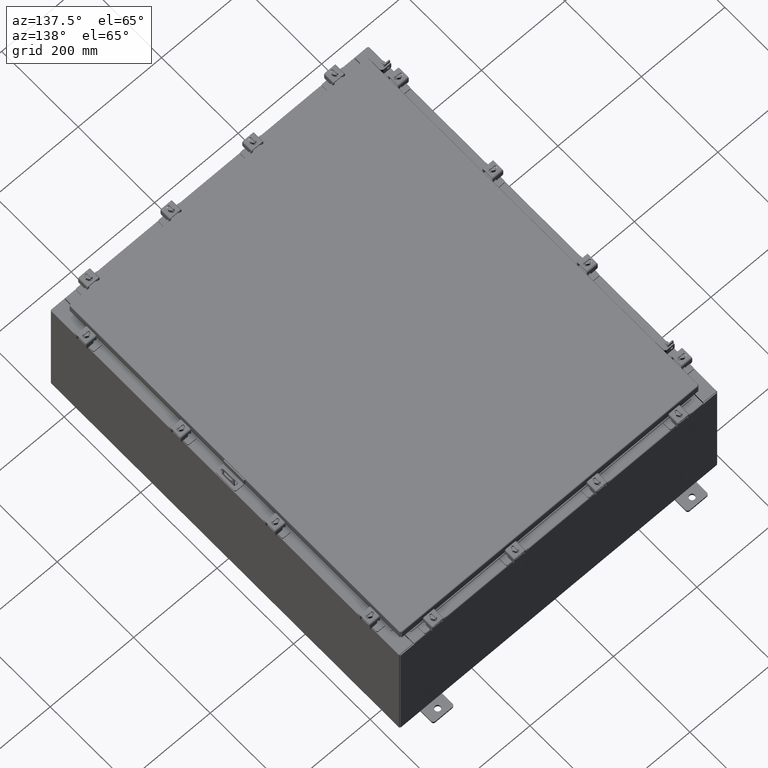
[diagram: clean part render]
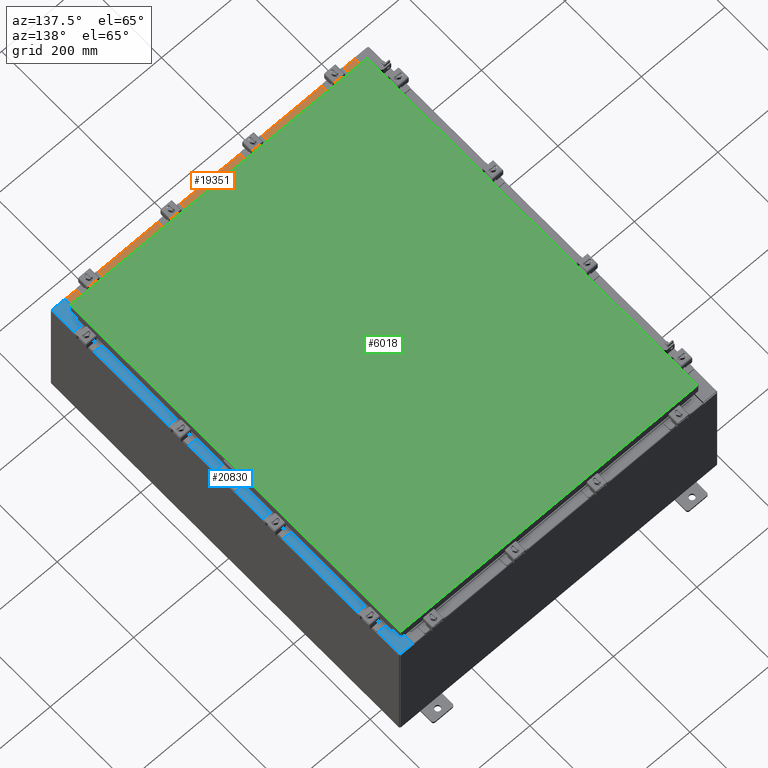
[diagram: same view with three faces highlighted in distinct colors, each labeled with its STEP entity id]
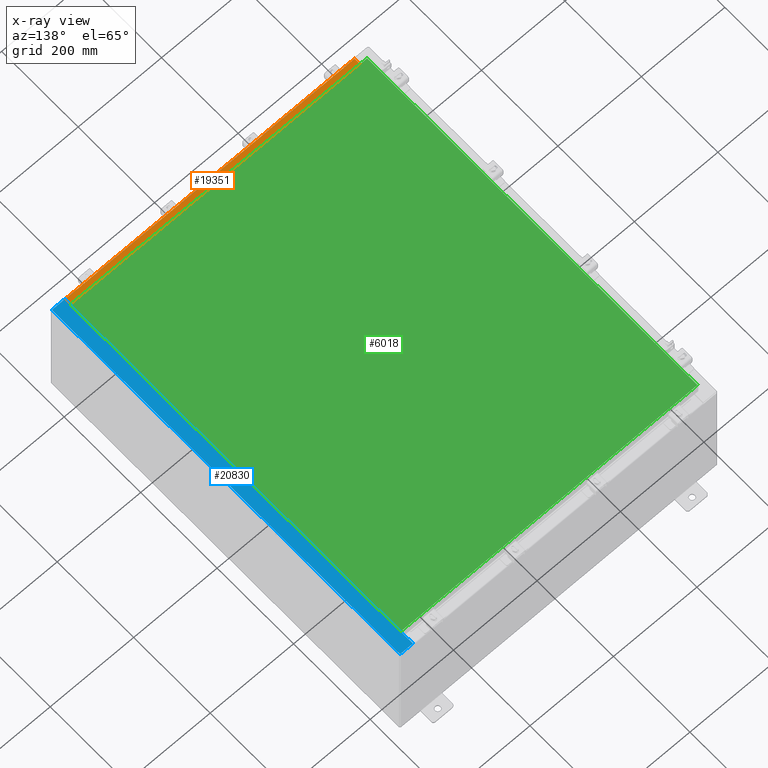
[diagram: x-ray of the same camera — body ghosted, the three highlighted faces saturated]
A machine part, auxiliary view with three faces highlighted in distinct colors.
The next image is the same camera in x-ray (body ghosted, the three faces saturated) — at least one of them is partly hidden behind the body in this view.
Their STEP definitions:

[orange] entity #19351 — the highlighted planar face has unit normal (-0, -0, 1).
#27 = CARTESIAN_POINT ( 'NONE',  ( -13.63719999999999800, -0.07469999999999973900, 5.999999999999999100 ) ) ;
#939 = DIRECTION ( 'NONE',  ( 0.0000000000000000000, -1.000000000000000000, 3.566381192773190000E-015 ) ) ;
#3584 = VERTEX_POINT ( 'NONE', #21790 ) ;
#3654 = VERTEX_POINT ( 'NONE', #15987 ) ;
#3777 = CARTESIAN_POINT ( 'NONE',  ( 13.63720000000000400, -1.287299999999999900, 6.000000000000003600 ) ) ;
#4337 = DIRECTION ( 'NONE',  ( 0.0000000000000000000, 3.566381192773190000E-015, 1.000000000000000000 ) ) ;
#6020 = LINE ( 'NONE', #8593, #14240 ) ;
#6156 = EDGE_LOOP ( 'NONE', ( #22346, #11446, #14502, #13624 ) ) ;
#7895 = LINE ( 'NONE', #27, #21725 ) ;
#8593 = CARTESIAN_POINT ( 'NONE',  ( 13.63720000000000400, -1.300299999999999800, 6.000000000000003600 ) ) ;
#8648 = LINE ( 'NONE', #19190, #12723 ) ;
#8824 = DIRECTION ( 'NONE',  ( -1.000000000000000000, 4.006464660875052000E-017, -1.428858021605520200E-031 ) ) ;
#9294 = LINE ( 'NONE', #3777, #12800 ) ;
#9670 = CARTESIAN_POINT ( 'NONE',  ( -13.63719999999999800, -1.287299999999999200, 6.000000000000003600 ) ) ;
#10375 = DIRECTION ( 'NONE',  ( -0.0000000000000000000, -1.000000000000000000, 3.566381192773190000E-015 ) ) ;
#11446 = ORIENTED_EDGE ( 'NONE', *, *, #15059, .F. ) ;
#11455 = PLANE ( 'NONE',  #14532 ) ;
#12164 = EDGE_CURVE ( 'NONE', #16263, #3584, #6020, .T. ) ;
#12273 = DIRECTION ( 'NONE',  ( -0.0000000000000000000, 1.000000000000000000, -3.566381192773190000E-015 ) ) ;
#12723 = VECTOR ( 'NONE', #8824, 39.37007874015748100 ) ;
#12800 = VECTOR ( 'NONE', #14390, 39.37007874015748100 ) ;
#13624 = ORIENTED_EDGE ( 'NONE', *, *, #17802, .T. ) ;
#14016 = VERTEX_POINT ( 'NONE', #9670 ) ;
#14240 = VECTOR ( 'NONE', #10375, 39.37007874015748100 ) ;
#14390 = DIRECTION ( 'NONE',  ( -1.000000000000000000, 0.0000000000000000000, 0.0000000000000000000 ) ) ;
#14502 = ORIENTED_EDGE ( 'NONE', *, *, #12164, .F. ) ;
#14532 = AXIS2_PLACEMENT_3D ( 'NONE', #20060, #4337, #939 ) ;
#14946 = EDGE_CURVE ( 'NONE', #14016, #3654, #7895, .T. ) ;
#15059 = EDGE_CURVE ( 'NONE', #3584, #14016, #9294, .T. ) ;
#15987 = CARTESIAN_POINT ( 'NONE',  ( -13.63719999999999800, -0.08769999999999972300, 5.999999999999999100 ) ) ;
#16263 = VERTEX_POINT ( 'NONE', #19783 ) ;
#17494 = FACE_OUTER_BOUND ( 'NONE', #6156, .T. ) ;
#17802 = EDGE_CURVE ( 'NONE', #16263, #3654, #8648, .T. ) ;
#19190 = CARTESIAN_POINT ( 'NONE',  ( -3.513669507588266700E-018, -0.08769999999999972300, 5.999999999999999100 ) ) ;
#19351 = ADVANCED_FACE ( 'NONE', ( #17494 ), #11455, .T. ) ;
#19783 = CARTESIAN_POINT ( 'NONE',  ( 13.63720000000000400, -0.08769999999999937600, 5.999999999999999100 ) ) ;
#20060 = CARTESIAN_POINT ( 'NONE',  ( 0.0000000000000000000, 2.139269213755056400E-014, 5.999999999999999100 ) ) ;
#21725 = VECTOR ( 'NONE', #12273, 39.37007874015748100 ) ;
#21790 = CARTESIAN_POINT ( 'NONE',  ( 13.63720000000000400, -1.287299999999999900, 6.000000000000003600 ) ) ;
#22346 = ORIENTED_EDGE ( 'NONE', *, *, #14946, .F. ) ;

[blue] entity #20830 — the highlighted planar face has unit normal (-0, 0, -1).
#1 = VERTEX_POINT ( 'NONE', #7058 ) ;
#203 = CARTESIAN_POINT ( 'NONE',  ( 13.71270000000004300, -16.59375000000000000, 11.92530000000000900 ) ) ;
#336 = DIRECTION ( 'NONE',  ( -0.0000000000000000000, 1.000000000000000000, -0.0000000000000000000 ) ) ;
#603 = EDGE_CURVE ( 'NONE', #5093, #11613, #20485, .T. ) ;
#1014 = VERTEX_POINT ( 'NONE', #21579 ) ;
#1026 = EDGE_CURVE ( 'NONE', #14311, #17795, #8252, .T. ) ;
#1229 = EDGE_LOOP ( 'NONE', ( #2172, #5036, #19442, #19210, #7665, #19835, #5896, #21525, #9112, #18392, #16283, #17995 ) ) ;
#1394 = PLANE ( 'NONE',  #22334 ) ;
#1472 = EDGE_CURVE ( 'NONE', #10079, #16453, #6613, .T. ) ;
#1852 = DIRECTION ( 'NONE',  ( 1.000000000000000000, 0.0000000000000000000, 0.0000000000000000000 ) ) ;
#2070 = EDGE_CURVE ( 'NONE', #16453, #5556, #13689, .T. ) ;
#2172 = ORIENTED_EDGE ( 'NONE', *, *, #9111, .F. ) ;
#2268 = DIRECTION ( 'NONE',  ( -1.000000000000000000, 0.0000000000000000000, 0.0000000000000000000 ) ) ;
#2300 = EDGE_CURVE ( 'NONE', #10913, #10079, #10991, .T. ) ;
#2394 = AXIS2_PLACEMENT_3D ( 'NONE', #6316, #21662, #20078 ) ;
#2845 = CARTESIAN_POINT ( 'NONE',  ( 13.75005000000004300, 16.59375000000000000, 11.92530000000000900 ) ) ;
#2980 = VECTOR ( 'NONE', #9551, 39.37007874015748100 ) ;
#3282 = VERTEX_POINT ( 'NONE', #14010 ) ;
#3553 = VECTOR ( 'NONE', #16904, 39.37007874015748100 ) ;
#3569 = CARTESIAN_POINT ( 'NONE',  ( 13.71270000000004300, 16.59375000000000000, 11.92530000000000900 ) ) ;
#3609 = DIRECTION ( 'NONE',  ( -1.000000000000000000, 0.0000000000000000000, 7.132762385546384700E-015 ) ) ;
#3681 = VECTOR ( 'NONE', #8283, 39.37007874015748100 ) ;
#3702 = LINE ( 'NONE', #12397, #12532 ) ;
#3848 = CARTESIAN_POINT ( 'NONE',  ( 13.69970000000004100, 0.0000000000000000000, 11.92530000000000900 ) ) ;
#3893 = CARTESIAN_POINT ( 'NONE',  ( 13.69970000000004100, -16.63110000000000400, 11.92530000000000900 ) ) ;
#4873 = DIRECTION ( 'NONE',  ( -7.132762385546384700E-015, 0.0000000000000000000, -1.000000000000000000 ) ) ;
#5036 = ORIENTED_EDGE ( 'NONE', *, *, #21477, .T. ) ;
#5093 = VERTEX_POINT ( 'NONE', #6418 ) ;
#5189 = CARTESIAN_POINT ( 'NONE',  ( 13.69970000000004100, 17.92530000000000000, 11.92530000000000900 ) ) ;
#5219 = CARTESIAN_POINT ( 'NONE',  ( 13.69970000000004100, 16.63110000000000400, 11.92530000000000900 ) ) ;
#5556 = VERTEX_POINT ( 'NONE', #8796 ) ;
#5828 = VECTOR ( 'NONE', #9280, 39.37007874015748100 ) ;
#5896 = ORIENTED_EDGE ( 'NONE', *, *, #15811, .F. ) ;
#6268 = VECTOR ( 'NONE', #17846, 39.37007874015748100 ) ;
#6316 = CARTESIAN_POINT ( 'NONE',  ( 13.75005000000004300, -16.61242500000000200, 11.92530000000000900 ) ) ;
#6418 = CARTESIAN_POINT ( 'NONE',  ( 13.75005000000004300, -16.63110000000000000, 11.92530000000000900 ) ) ;
#6613 = LINE ( 'NONE', #16059, #3553 ) ;
#7058 = CARTESIAN_POINT ( 'NONE',  ( 13.69970000000004100, -17.92530000000000000, 11.92530000000000900 ) ) ;
#7389 = VECTOR ( 'NONE', #15959, 39.37007874015748100 ) ;
#7665 = ORIENTED_EDGE ( 'NONE', *, *, #16068, .T. ) ;
#8036 = CARTESIAN_POINT ( 'NONE',  ( 13.71270000000004300, -16.59375000000000000, 11.92530000000000900 ) ) ;
#8252 = LINE ( 'NONE', #22085, #2980 ) ;
#8283 = DIRECTION ( 'NONE',  ( -1.000000000000000000, 4.340572780399910900E-014, 0.0000000000000000000 ) ) ;
#8709 = LINE ( 'NONE', #16160, #21953 ) ;
#8796 = CARTESIAN_POINT ( 'NONE',  ( 13.75005000000004300, 16.63110000000000000, 11.92530000000000900 ) ) ;
#9111 = EDGE_CURVE ( 'NONE', #3282, #5093, #10570, .T. ) ;
#9112 = ORIENTED_EDGE ( 'NONE', *, *, #1472, .F. ) ;
#9280 = DIRECTION ( 'NONE',  ( 1.000000000000000000, 4.340572780399910900E-014, 0.0000000000000000000 ) ) ;
#9316 = DIRECTION ( 'NONE',  ( 1.000000000000000000, 0.0000000000000000000, -7.132762385546384700E-015 ) ) ;
#9551 = DIRECTION ( 'NONE',  ( 0.0000000000000000000, -1.000000000000000000, 0.0000000000000000000 ) ) ;
#10070 = CARTESIAN_POINT ( 'NONE',  ( 13.75005000000004300, 16.63110000000000000, 11.92530000000000900 ) ) ;
#10079 = VERTEX_POINT ( 'NONE', #3569 ) ;
#10570 = LINE ( 'NONE', #3893, #5828 ) ;
#10606 = LINE ( 'NONE', #12787, #11119 ) ;
#10913 = VERTEX_POINT ( 'NONE', #8036 ) ;
#10991 = LINE ( 'NONE', #203, #19081 ) ;
#11119 = VECTOR ( 'NONE', #2268, 39.37007874015748100 ) ;
#11613 = VERTEX_POINT ( 'NONE', #15590 ) ;
#12397 = CARTESIAN_POINT ( 'NONE',  ( 8.531902765212701500E-014, 17.92530000000000000, 11.92530000000010800 ) ) ;
#12532 = VECTOR ( 'NONE', #3609, 39.37007874015748100 ) ;
#12787 = CARTESIAN_POINT ( 'NONE',  ( 13.75005000000004300, -16.59375000000000000, 11.92530000000000900 ) ) ;
#13642 = CARTESIAN_POINT ( 'NONE',  ( 8.531902765212701500E-014, 0.0000000000000000000, 11.92530000000010800 ) ) ;
#13689 = CIRCLE ( 'NONE', #16910, 0.01867499999999949400 ) ;
#13966 = FACE_OUTER_BOUND ( 'NONE', #1229, .T. ) ;
#14010 = CARTESIAN_POINT ( 'NONE',  ( 13.69970000000004100, -16.63110000000000400, 11.92530000000000900 ) ) ;
#14238 = CARTESIAN_POINT ( 'NONE',  ( 14.91230000000003900, -17.92530000000000000, 11.92530000000000000 ) ) ;
#14311 = VERTEX_POINT ( 'NONE', #5189 ) ;
#15498 = EDGE_CURVE ( 'NONE', #1, #1014, #8709, .T. ) ;
#15590 = CARTESIAN_POINT ( 'NONE',  ( 13.75005000000004300, -16.59375000000000000, 11.92530000000000900 ) ) ;
#15811 = EDGE_CURVE ( 'NONE', #5556, #17795, #18179, .T. ) ;
#15959 = DIRECTION ( 'NONE',  ( -0.0000000000000000000, -1.000000000000000000, -0.0000000000000000000 ) ) ;
#16059 = CARTESIAN_POINT ( 'NONE',  ( 13.71270000000004300, 16.59375000000000000, 11.92530000000000900 ) ) ;
#16068 = EDGE_CURVE ( 'NONE', #21160, #14311, #3702, .T. ) ;
#16160 = CARTESIAN_POINT ( 'NONE',  ( 8.531902765212701500E-014, -17.92530000000000000, 11.92530000000010800 ) ) ;
#16283 = ORIENTED_EDGE ( 'NONE', *, *, #17428, .F. ) ;
#16453 = VERTEX_POINT ( 'NONE', #2845 ) ;
#16904 = DIRECTION ( 'NONE',  ( 1.000000000000000000, 0.0000000000000000000, 0.0000000000000000000 ) ) ;
#16910 = AXIS2_PLACEMENT_3D ( 'NONE', #17664, #22483, #1852 ) ;
#17107 = DIRECTION ( 'NONE',  ( -1.000000000000000000, 0.0000000000000000000, 7.132762385546384700E-015 ) ) ;
#17428 = EDGE_CURVE ( 'NONE', #11613, #10913, #10606, .T. ) ;
#17664 = CARTESIAN_POINT ( 'NONE',  ( 13.75005000000004300, 16.61242500000000200, 11.92530000000000900 ) ) ;
#17795 = VERTEX_POINT ( 'NONE', #5219 ) ;
#17846 = DIRECTION ( 'NONE',  ( 0.0000000000000000000, -1.000000000000000000, 0.0000000000000000000 ) ) ;
#17995 = ORIENTED_EDGE ( 'NONE', *, *, #603, .F. ) ;
#18179 = LINE ( 'NONE', #10070, #3681 ) ;
#18392 = ORIENTED_EDGE ( 'NONE', *, *, #2300, .F. ) ;
#18461 = CARTESIAN_POINT ( 'NONE',  ( 14.91230000000003900, 17.92530000000000000, 11.92530000000000000 ) ) ;
#19081 = VECTOR ( 'NONE', #336, 39.37007874015748100 ) ;
#19210 = ORIENTED_EDGE ( 'NONE', *, *, #21421, .F. ) ;
#19442 = ORIENTED_EDGE ( 'NONE', *, *, #15498, .T. ) ;
#19835 = ORIENTED_EDGE ( 'NONE', *, *, #1026, .T. ) ;
#20078 = DIRECTION ( 'NONE',  ( 1.000000000000000000, 0.0000000000000000000, 0.0000000000000000000 ) ) ;
#20485 = CIRCLE ( 'NONE', #2394, 0.01867499999999949400 ) ;
#20695 = LINE ( 'NONE', #3848, #6268 ) ;
#20830 = ADVANCED_FACE ( 'NONE', ( #13966 ), #1394, .F. ) ;
#21160 = VERTEX_POINT ( 'NONE', #18461 ) ;
#21219 = LINE ( 'NONE', #14238, #7389 ) ;
#21421 = EDGE_CURVE ( 'NONE', #21160, #1014, #21219, .T. ) ;
#21477 = EDGE_CURVE ( 'NONE', #3282, #1, #20695, .T. ) ;
#21525 = ORIENTED_EDGE ( 'NONE', *, *, #2070, .F. ) ;
#21579 = CARTESIAN_POINT ( 'NONE',  ( 14.91230000000003900, -17.92530000000000000, 11.92530000000000000 ) ) ;
#21662 = DIRECTION ( 'NONE',  ( 7.132762385546384700E-015, 0.0000000000000000000, 1.000000000000000000 ) ) ;
#21953 = VECTOR ( 'NONE', #9316, 39.37007874015748100 ) ;
#22085 = CARTESIAN_POINT ( 'NONE',  ( 13.69970000000004100, 0.0000000000000000000, 11.92530000000000900 ) ) ;
#22334 = AXIS2_PLACEMENT_3D ( 'NONE', #13642, #4873, #17107 ) ;
#22483 = DIRECTION ( 'NONE',  ( 7.132762385546384700E-015, 0.0000000000000000000, 1.000000000000000000 ) ) ;

[green] entity #6018 — the highlighted planar face has unit normal (0, 0, -1).
#315 = VECTOR ( 'NONE', #15445, 39.37007874015748100 ) ;
#785 = DIRECTION ( 'NONE',  ( 1.000000000000000000, -0.0000000000000000000, -0.0000000000000000000 ) ) ;
#2683 = LINE ( 'NONE', #14652, #6836 ) ;
#3347 = ORIENTED_EDGE ( 'NONE', *, *, #22028, .T. ) ;
#3888 = CARTESIAN_POINT ( 'NONE',  ( 0.0000000000000000000, 0.0000000000000000000, 0.0000000000000000000 ) ) ;
#4376 = CARTESIAN_POINT ( 'NONE',  ( 13.99029999999999800, -17.00630000000000700, -2.048885995248197400E-016 ) ) ;
#4568 = DIRECTION ( 'NONE',  ( -1.000000000000000000, 0.0000000000000000000, -0.0000000000000000000 ) ) ;
#4774 = VERTEX_POINT ( 'NONE', #12096 ) ;
#6018 = ADVANCED_FACE ( 'NONE', ( #16466 ), #15883, .F. ) ;
#6836 = VECTOR ( 'NONE', #785, 39.37007874015748100 ) ;
#7418 = CARTESIAN_POINT ( 'NONE',  ( -13.99030000000000000, 17.00630000000000000, -2.048885995248197400E-016 ) ) ;
#8033 = ORIENTED_EDGE ( 'NONE', *, *, #10455, .T. ) ;
#8695 = EDGE_CURVE ( 'NONE', #17825, #14860, #20308, .T. ) ;
#10455 = EDGE_CURVE ( 'NONE', #14860, #22260, #14278, .T. ) ;
#12096 = CARTESIAN_POINT ( 'NONE',  ( -13.99029999999999800, -17.00630000000000300, -2.048885995248197400E-016 ) ) ;
#12688 = DIRECTION ( 'NONE',  ( 0.0000000000000000000, -1.000000000000000000, 0.0000000000000000000 ) ) ;
#12783 = EDGE_CURVE ( 'NONE', #4774, #17825, #2683, .T. ) ;
#13288 = CARTESIAN_POINT ( 'NONE',  ( -13.99030000000000000, 17.00630000000000000, -2.048885995248197400E-016 ) ) ;
#13683 = CARTESIAN_POINT ( 'NONE',  ( 13.99029999999999600, 17.00629999999999600, 8.878505979408856000E-016 ) ) ;
#13688 = ORIENTED_EDGE ( 'NONE', *, *, #12783, .T. ) ;
#14278 = LINE ( 'NONE', #13683, #315 ) ;
#14317 = EDGE_LOOP ( 'NONE', ( #13688, #21581, #8033, #3347 ) ) ;
#14652 = CARTESIAN_POINT ( 'NONE',  ( -13.99029999999999800, -17.00630000000000300, -2.048885995248197400E-016 ) ) ;
#14860 = VERTEX_POINT ( 'NONE', #17155 ) ;
#14898 = DIRECTION ( 'NONE',  ( 0.0000000000000000000, 1.000000000000000000, 0.0000000000000000000 ) ) ;
#15445 = DIRECTION ( 'NONE',  ( -1.000000000000000000, -0.0000000000000000000, -0.0000000000000000000 ) ) ;
#15529 = LINE ( 'NONE', #7418, #19582 ) ;
#15694 = VECTOR ( 'NONE', #14898, 39.37007874015748100 ) ;
#15883 = PLANE ( 'NONE',  #19728 ) ;
#16466 = FACE_OUTER_BOUND ( 'NONE', #14317, .T. ) ;
#17078 = DIRECTION ( 'NONE',  ( 0.0000000000000000000, 0.0000000000000000000, -1.000000000000000000 ) ) ;
#17155 = CARTESIAN_POINT ( 'NONE',  ( 13.99029999999999600, 17.00629999999999600, 8.878505979408856000E-016 ) ) ;
#17825 = VERTEX_POINT ( 'NONE', #21010 ) ;
#19582 = VECTOR ( 'NONE', #12688, 39.37007874015748100 ) ;
#19728 = AXIS2_PLACEMENT_3D ( 'NONE', #3888, #17078, #4568 ) ;
#20308 = LINE ( 'NONE', #4376, #15694 ) ;
#21010 = CARTESIAN_POINT ( 'NONE',  ( 13.99029999999999800, -17.00630000000000700, -2.048885995248197400E-016 ) ) ;
#21581 = ORIENTED_EDGE ( 'NONE', *, *, #8695, .T. ) ;
#22028 = EDGE_CURVE ( 'NONE', #22260, #4774, #15529, .T. ) ;
#22260 = VERTEX_POINT ( 'NONE', #13288 ) ;